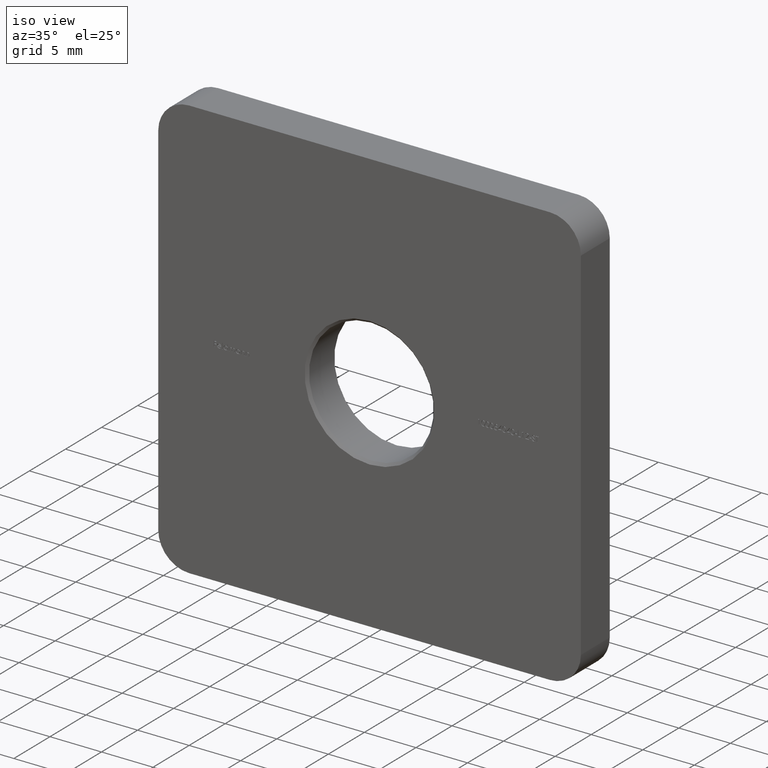
[diagram: clean part render]
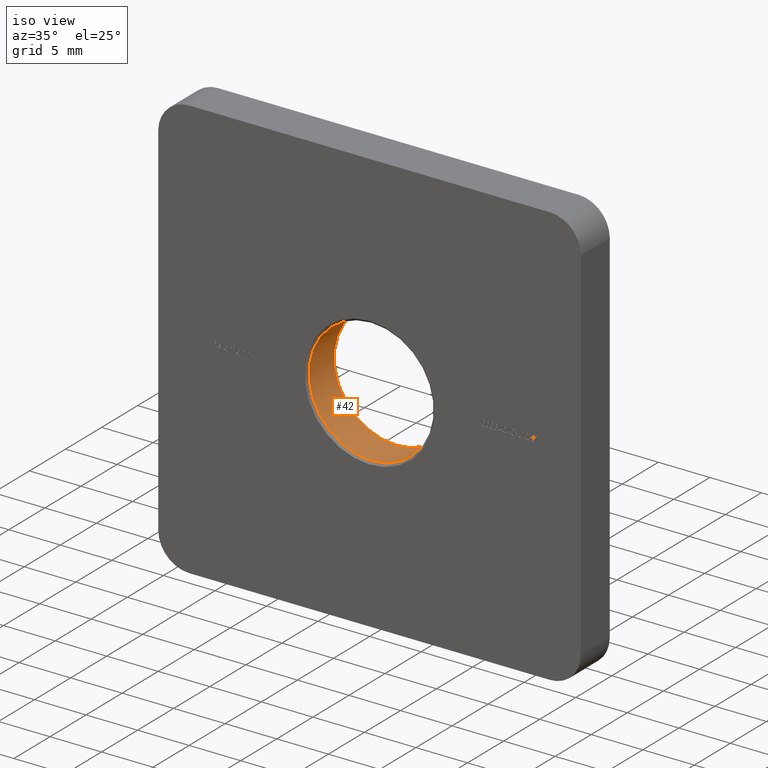
[diagram: same view with one face highlighted and labeled with its STEP entity id]
A machine part, iso view. The second image highlights one B-rep face of the part: STEP entity #42.
In plain terms, the highlighted cylindrical surface (bore or boss wall) has radius 6.05 mm, axis along (-0, 1, -0).
Its self-contained STEP definition (entity closure, byte-faithful):
#42 = ADVANCED_FACE ( 'NONE', ( #3450, #673 ), #9824, .F. ) ;
#473 = AXIS2_PLACEMENT_3D ( 'NONE', #10165, #3883, #14052 ) ;
#523 = AXIS2_PLACEMENT_3D ( 'NONE', #16274, #16325, #3538 ) ;
#673 = FACE_OUTER_BOUND ( 'NONE', #15155, .T. ) ;
#828 = CIRCLE ( 'NONE', #523, 6.049999999999999822 ) ;
#2758 = EDGE_CURVE ( 'NONE', #14968, #14968, #828, .T. ) ;
#3450 = FACE_OUTER_BOUND ( 'NONE', #12442, .T. ) ;
#3504 = ORIENTED_EDGE ( 'NONE', *, *, #2758, .T. ) ;
#3538 = DIRECTION ( 'NONE',  ( 0.000000000000000000, 0.000000000000000000, 1.000000000000000000 ) ) ;
#3635 = VERTEX_POINT ( 'NONE', #15769 ) ;
#3883 = DIRECTION ( 'NONE',  ( 0.000000000000000000, 1.000000000000000000, 0.000000000000000000 ) ) ;
#5679 = CARTESIAN_POINT ( 'NONE',  ( 0.000000000000000000, 0.2499999999999932832, 6.049999999999999822 ) ) ;
#6603 = AXIS2_PLACEMENT_3D ( 'NONE', #10783, #13451, #15727 ) ;
#9824 = CYLINDRICAL_SURFACE ( 'NONE', #6603, 6.049999999999999822 ) ;
#10165 = CARTESIAN_POINT ( 'NONE',  ( 0.000000000000000000, 3.750000000000013767, 0.000000000000000000 ) ) ;
#10783 = CARTESIAN_POINT ( 'NONE',  ( 0.000000000000000000, 0.000000000000000000, 0.000000000000000000 ) ) ;
#11613 = EDGE_CURVE ( 'NONE', #3635, #3635, #13252, .T. ) ;
#12442 = EDGE_LOOP ( 'NONE', ( #12820 ) ) ;
#12820 = ORIENTED_EDGE ( 'NONE', *, *, #11613, .T. ) ;
#13252 = CIRCLE ( 'NONE', #473, 6.049999999999999822 ) ;
#13451 = DIRECTION ( 'NONE',  ( -0.000000000000000000, 1.000000000000000000, -0.000000000000000000 ) ) ;
#14052 = DIRECTION ( 'NONE',  ( 0.000000000000000000, 0.000000000000000000, 1.000000000000000000 ) ) ;
#14968 = VERTEX_POINT ( 'NONE', #5679 ) ;
#15155 = EDGE_LOOP ( 'NONE', ( #3504 ) ) ;
#15727 = DIRECTION ( 'NONE',  ( 0.000000000000000000, 0.000000000000000000, 1.000000000000000000 ) ) ;
#15769 = CARTESIAN_POINT ( 'NONE',  ( 0.000000000000000000, 3.750000000000013767, 6.049999999999999822 ) ) ;
#16274 = CARTESIAN_POINT ( 'NONE',  ( 0.000000000000000000, 0.2499999999999932832, 0.000000000000000000 ) ) ;
#16325 = DIRECTION ( 'NONE',  ( -0.000000000000000000, -1.000000000000000000, -0.000000000000000000 ) ) ;